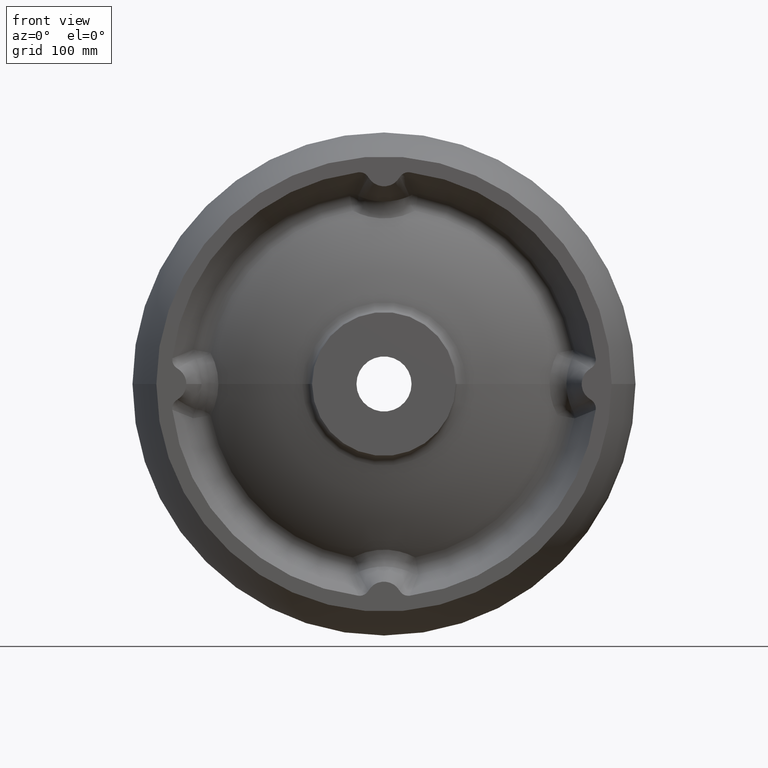
[diagram: clean part render]
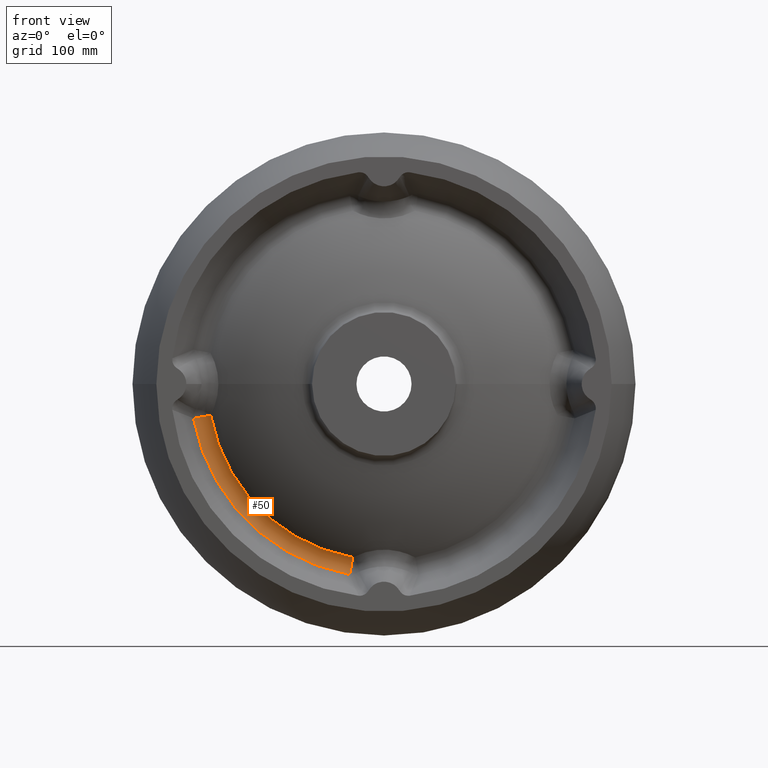
[diagram: same view with one face highlighted and labeled with its STEP entity id]
A machine part, front view. The second image highlights one B-rep face of the part: STEP entity #50.
In plain terms, the highlighted toroidal blend (fillet) surface has major radius 152.93 mm and minor (blend) radius 10 mm.
Its self-contained STEP definition (entity closure, byte-faithful):
#27 = EDGE_CURVE ( 'NONE', #1935, #1469, #2183, .T. ) ;
#50 = ADVANCED_FACE ( 'NONE', ( #751 ), #1242, .F. ) ;
#82 = AXIS2_PLACEMENT_3D ( 'NONE', #1537, #1178, #1524 ) ;
#174 = CIRCLE ( 'NONE', #1586, 147.0427263387815600 ) ;
#259 = ORIENTED_EDGE ( 'NONE', *, *, #1111, .T. ) ;
#307 = ORIENTED_EDGE ( 'NONE', *, *, #27, .F. ) ;
#366 = ORIENTED_EDGE ( 'NONE', *, *, #1685, .T. ) ;
#411 = CARTESIAN_POINT ( 'NONE',  ( -150.5057037449401200, 23.42218461940032300, -27.12335082833418600 ) ) ;
#485 = DIRECTION ( 'NONE',  ( -1.246832498358330100E-016, 1.000000000000000000, -0.0000000000000000000 ) ) ;
#504 = CARTESIAN_POINT ( 'NONE',  ( -3.543770345780864200E-015, 28.42218461940034800, 0.0000000000000000000 ) ) ;
#505 = AXIS2_PLACEMENT_3D ( 'NONE', #504, #485, #2300 ) ;
#567 = DIRECTION ( 'NONE',  ( -0.1773577265847664800, -2.211353773408380400E-017, 0.9841464509008217600 ) ) ;
#705 = AXIS2_PLACEMENT_3D ( 'NONE', #2301, #2103, #2116 ) ;
#751 = FACE_OUTER_BOUND ( 'NONE', #872, .T. ) ;
#816 = EDGE_CURVE ( 'NONE', #1935, #1597, #1362, .T. ) ;
#872 = EDGE_LOOP ( 'NONE', ( #307, #2111, #366, #259 ) ) ;
#949 = DIRECTION ( 'NONE',  ( -1.000000000000000000, -1.415689319018795900E-016, 0.0000000000000000000 ) ) ;
#1022 = CARTESIAN_POINT ( 'NONE',  ( -144.7115772570926400, 31.50536291684921500, -26.07916365427226100 ) ) ;
#1111 = EDGE_CURVE ( 'NONE', #1785, #1469, #1741, .T. ) ;
#1178 = DIRECTION ( 'NONE',  ( -1.246832498358330100E-016, 1.000000000000000000, -0.0000000000000000000 ) ) ;
#1242 = TOROIDAL_SURFACE ( 'NONE', #82, 152.9301900211876800, 10.00000000000000200 ) ;
#1362 = CIRCLE ( 'NONE', #705, 10.00000000000000400 ) ;
#1461 = CARTESIAN_POINT ( 'NONE',  ( -3.928191035730102100E-015, 31.50536291684923600, 0.0000000000000000000 ) ) ;
#1469 = VERTEX_POINT ( 'NONE', #1475 ) ;
#1475 = CARTESIAN_POINT ( 'NONE',  ( -159.0286620201841900, 28.42218461940032600, -28.65931379613293500 ) ) ;
#1509 = CARTESIAN_POINT ( 'NONE',  ( -26.07916365427220400, 31.50536291684923600, -144.7115772570926700 ) ) ;
#1524 = DIRECTION ( 'NONE',  ( -1.000000000000000000, -1.246832498358330100E-016, 0.0000000000000000000 ) ) ;
#1537 = CARTESIAN_POINT ( 'NONE',  ( 0.0000000000000000000, 23.42218461940034000, 0.0000000000000000000 ) ) ;
#1586 = AXIS2_PLACEMENT_3D ( 'NONE', #1461, #1853, #949 ) ;
#1597 = VERTEX_POINT ( 'NONE', #1509 ) ;
#1685 = EDGE_CURVE ( 'NONE', #1597, #1785, #174, .T. ) ;
#1741 = CIRCLE ( 'NONE', #2175, 10.00000000000000400 ) ;
#1785 = VERTEX_POINT ( 'NONE', #1022 ) ;
#1848 = DIRECTION ( 'NONE',  ( 0.9841464509008215300, 0.0000000000000000000, 0.1773577265847664500 ) ) ;
#1853 = DIRECTION ( 'NONE',  ( -1.246832498358330100E-016, 1.000000000000000000, -0.0000000000000000000 ) ) ;
#1935 = VERTEX_POINT ( 'NONE', #2114 ) ;
#2103 = DIRECTION ( 'NONE',  ( 0.9841464509008217600, 1.227065778127155300E-016, -0.1773577265847660900 ) ) ;
#2111 = ORIENTED_EDGE ( 'NONE', *, *, #816, .T. ) ;
#2114 = CARTESIAN_POINT ( 'NONE',  ( -28.65931379613290300, 28.42218461940034400, -159.0286620201842100 ) ) ;
#2116 = DIRECTION ( 'NONE',  ( 0.1773577265847660900, 0.0000000000000000000, 0.9841464509008215300 ) ) ;
#2175 = AXIS2_PLACEMENT_3D ( 'NONE', #411, #567, #1848 ) ;
#2183 = CIRCLE ( 'NONE', #505, 161.5904440590321100 ) ;
#2300 = DIRECTION ( 'NONE',  ( -1.000000000000000000, -1.288237174725316500E-016, 0.0000000000000000000 ) ) ;
#2301 = CARTESIAN_POINT ( 'NONE',  ( -27.12335082833412900, 23.42218461940033700, -150.5057037449401200 ) ) ;